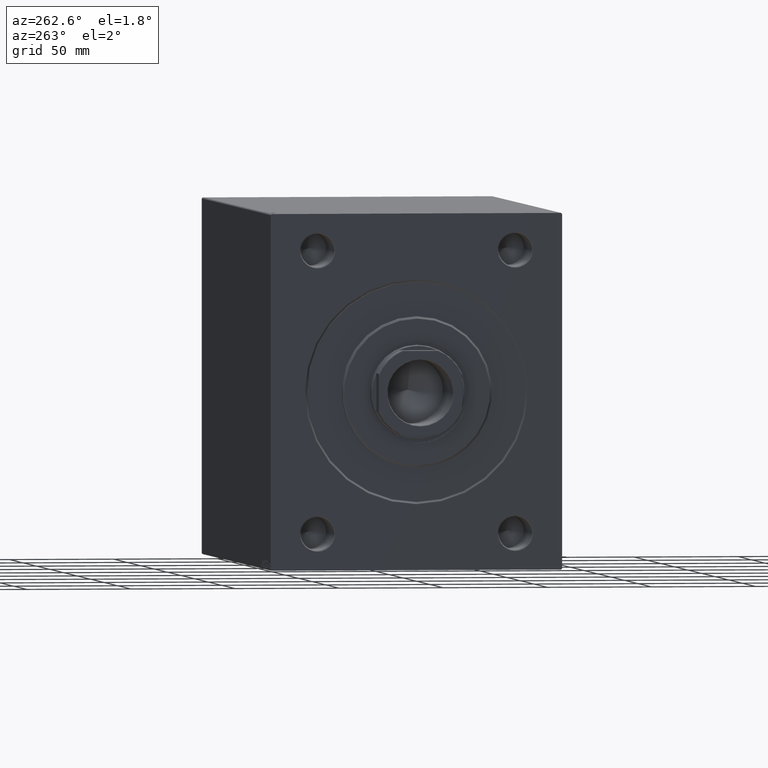
[diagram: clean part render]
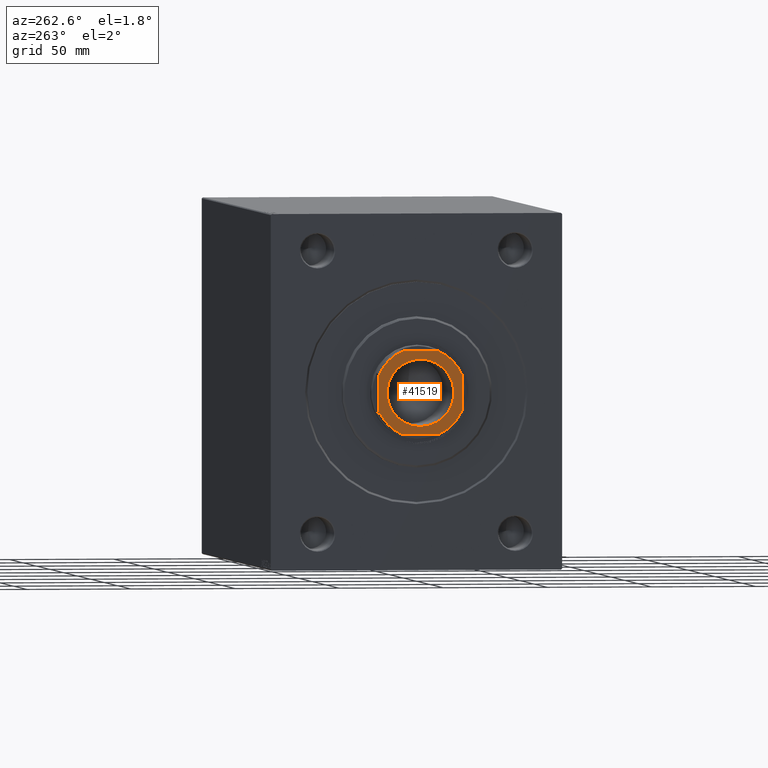
[diagram: same view with one face highlighted and labeled with its STEP entity id]
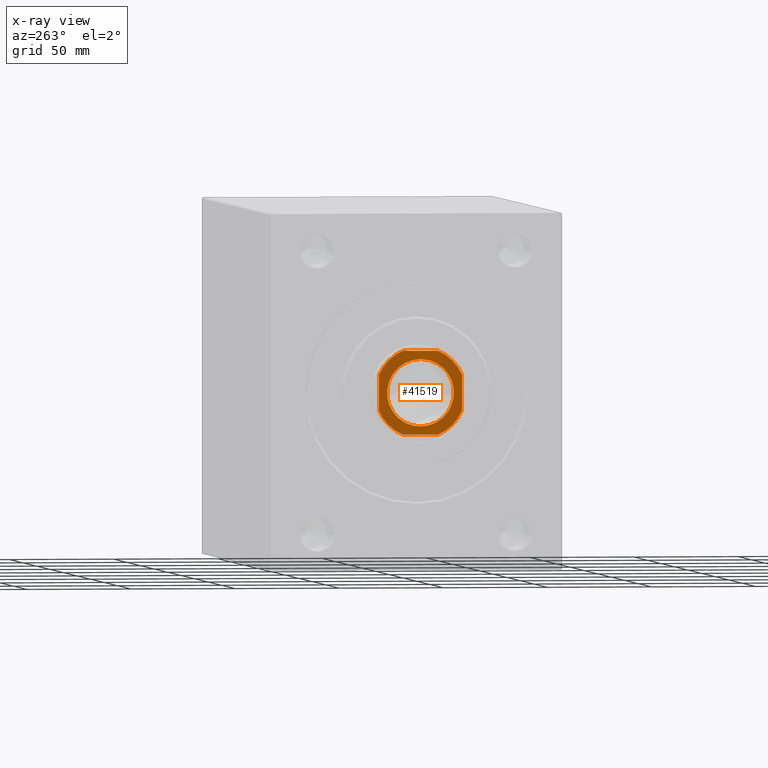
[diagram: x-ray of the same camera — body ghosted, the highlighted face saturated]
A machine part, auxiliary view. The second image highlights one B-rep face of the part: STEP entity #41519.
The next image is the same camera in x-ray: the body ghosted, the highlighted face saturated — about 0% of this face is hidden behind the body in this view.
In plain terms, the highlighted planar face has unit normal (-1, 0, 0).
Its self-contained STEP definition (entity closure, byte-faithful):
#274 = EDGE_CURVE ( 'NONE', #1446, #30157, #19291, .T. ) ;
#293 = VECTOR ( 'NONE', #2611, 1000.000000000000000 ) ;
#951 = EDGE_CURVE ( 'NONE', #9966, #1446, #38605, .T. ) ;
#1048 = CARTESIAN_POINT ( 'NONE',  ( -20.00000000000000355, 8.419619943916682558, 244.0000000000000284 ) ) ;
#1446 = VERTEX_POINT ( 'NONE', #25354 ) ;
#1831 = VERTEX_POINT ( 'NONE', #8669 ) ;
#2450 = CARTESIAN_POINT ( 'NONE',  ( -20.00000000000000000, -8.419619943916694993, 244.0000000000000284 ) ) ;
#2611 = DIRECTION ( 'NONE',  ( -1.000000000000000000, -8.673617379884035472E-17, -0.000000000000000000 ) ) ;
#3323 = ORIENTED_EDGE ( 'NONE', *, *, #12639, .T. ) ;
#3882 = AXIS2_PLACEMENT_3D ( 'NONE', #26722, #13098, #6636 ) ;
#4058 = DIRECTION ( 'NONE',  ( -0.000000000000000000, 0.000000000000000000, 1.000000000000000000 ) ) ;
#4680 = VERTEX_POINT ( 'NONE', #17643 ) ;
#5156 = AXIS2_PLACEMENT_3D ( 'NONE', #12153, #42330, #26225 ) ;
#5265 = DIRECTION ( 'NONE',  ( -2.602085213965210149E-16, 1.000000000000000000, -0.000000000000000000 ) ) ;
#5422 = DIRECTION ( 'NONE',  ( -0.000000000000000000, 0.000000000000000000, 1.000000000000000000 ) ) ;
#5804 = LINE ( 'NONE', #18949, #35227 ) ;
#6249 = ORIENTED_EDGE ( 'NONE', *, *, #20738, .T. ) ;
#6636 = DIRECTION ( 'NONE',  ( 1.000000000000000000, 0.000000000000000000, 0.000000000000000000 ) ) ;
#7481 = DIRECTION ( 'NONE',  ( 0.000000000000000000, -0.000000000000000000, -1.000000000000000000 ) ) ;
#8669 = CARTESIAN_POINT ( 'NONE',  ( -16.05000000000003624, 1.965558112631506149E-15, 244.0000000000000284 ) ) ;
#9259 = EDGE_CURVE ( 'NONE', #42444, #20440, #5804, .T. ) ;
#9966 = VERTEX_POINT ( 'NONE', #20794 ) ;
#10035 = VECTOR ( 'NONE', #5265, 1000.000000000000000 ) ;
#12153 = CARTESIAN_POINT ( 'NONE',  ( 0.000000000000000000, 0.000000000000000000, 244.0000000000000284 ) ) ;
#12480 = CIRCLE ( 'NONE', #28159, 21.69999999999999574 ) ;
#12621 = EDGE_CURVE ( 'NONE', #16894, #4680, #33217, .T. ) ;
#12639 = EDGE_CURVE ( 'NONE', #30157, #16894, #41659, .T. ) ;
#12905 = FACE_OUTER_BOUND ( 'NONE', #27267, .T. ) ;
#13098 = DIRECTION ( 'NONE',  ( -0.000000000000000000, 0.000000000000000000, 1.000000000000000000 ) ) ;
#14305 = DIRECTION ( 'NONE',  ( 1.000000000000000000, 0.000000000000000000, 0.000000000000000000 ) ) ;
#14363 = EDGE_CURVE ( 'NONE', #20440, #25550, #12480, .T. ) ;
#15009 = CARTESIAN_POINT ( 'NONE',  ( -19.99999999999999645, -20.00000000000001066, 244.0000000000000284 ) ) ;
#15472 = CARTESIAN_POINT ( 'NONE',  ( 8.419619943916625715, 19.99999999999999289, 244.0000000000000284 ) ) ;
#16894 = VERTEX_POINT ( 'NONE', #15472 ) ;
#17134 = EDGE_LOOP ( 'NONE', ( #28161, #26335 ) ) ;
#17440 = ORIENTED_EDGE ( 'NONE', *, *, #9259, .T. ) ;
#17643 = CARTESIAN_POINT ( 'NONE',  ( -8.419619943916716309, 19.99999999999999289, 244.0000000000000284 ) ) ;
#17972 = AXIS2_PLACEMENT_3D ( 'NONE', #42714, #5422, #25501 ) ;
#18669 = CIRCLE ( 'NONE', #17972, 21.69999999999999574 ) ;
#18949 = CARTESIAN_POINT ( 'NONE',  ( -20.00000000000000711, 19.99999999999998934, 244.0000000000000284 ) ) ;
#19074 = CARTESIAN_POINT ( 'NONE',  ( 19.99999999999999289, 19.99999999999999289, 244.0000000000000284 ) ) ;
#19291 = LINE ( 'NONE', #19074, #10035 ) ;
#20021 = FACE_BOUND ( 'NONE', #17134, .T. ) ;
#20440 = VERTEX_POINT ( 'NONE', #2450 ) ;
#20726 = AXIS2_PLACEMENT_3D ( 'NONE', #38826, #23691, #20773 ) ;
#20738 = EDGE_CURVE ( 'NONE', #25550, #9966, #35351, .T. ) ;
#20773 = DIRECTION ( 'NONE',  ( 1.000000000000000000, 0.000000000000000000, 0.000000000000000000 ) ) ;
#20794 = CARTESIAN_POINT ( 'NONE',  ( 8.419619943916575977, -20.00000000000001066, 244.0000000000000284 ) ) ;
#22952 = CARTESIAN_POINT ( 'NONE',  ( 16.05000000000003624, 0.000000000000000000, 244.0000000000000284 ) ) ;
#22959 = CIRCLE ( 'NONE', #5156, 16.05000000000003624 ) ;
#23414 = ORIENTED_EDGE ( 'NONE', *, *, #274, .T. ) ;
#23691 = DIRECTION ( 'NONE',  ( -0.000000000000000000, 0.000000000000000000, 1.000000000000000000 ) ) ;
#23833 = CARTESIAN_POINT ( 'NONE',  ( 0.000000000000000000, 0.000000000000000000, 244.0000000000000284 ) ) ;
#24432 = CARTESIAN_POINT ( 'NONE',  ( 0.000000000000000000, 0.000000000000000000, 244.0000000000000284 ) ) ;
#24775 = CARTESIAN_POINT ( 'NONE',  ( -8.419619943916673677, -20.00000000000001066, 244.0000000000000284 ) ) ;
#25354 = CARTESIAN_POINT ( 'NONE',  ( 20.00000000000000000, -8.419619943916611504, 244.0000000000000284 ) ) ;
#25360 = CARTESIAN_POINT ( 'NONE',  ( 19.99999999999999289, 8.419619943916616833, 244.0000000000000284 ) ) ;
#25386 = VECTOR ( 'NONE', #32224, 1000.000000000000000 ) ;
#25501 = DIRECTION ( 'NONE',  ( 1.000000000000000000, 0.000000000000000000, 0.000000000000000000 ) ) ;
#25550 = VERTEX_POINT ( 'NONE', #24775 ) ;
#26225 = DIRECTION ( 'NONE',  ( 1.000000000000000000, 0.000000000000000000, 0.000000000000000000 ) ) ;
#26335 = ORIENTED_EDGE ( 'NONE', *, *, #43836, .T. ) ;
#26437 = ORIENTED_EDGE ( 'NONE', *, *, #12621, .T. ) ;
#26722 = CARTESIAN_POINT ( 'NONE',  ( 0.000000000000000000, 0.000000000000000000, 244.0000000000000284 ) ) ;
#26965 = EDGE_CURVE ( 'NONE', #36967, #1831, #29076, .T. ) ;
#27267 = EDGE_LOOP ( 'NONE', ( #23414, #3323, #26437, #42113, #17440, #34691, #6249, #31548 ) ) ;
#27712 = CARTESIAN_POINT ( 'NONE',  ( 0.000000000000000000, 0.000000000000000000, 244.0000000000000284 ) ) ;
#28159 = AXIS2_PLACEMENT_3D ( 'NONE', #27712, #4058, #14305 ) ;
#28161 = ORIENTED_EDGE ( 'NONE', *, *, #26965, .T. ) ;
#29076 = CIRCLE ( 'NONE', #37638, 16.05000000000003624 ) ;
#30157 = VERTEX_POINT ( 'NONE', #25360 ) ;
#30331 = DIRECTION ( 'NONE',  ( 1.000000000000000000, 0.000000000000000000, 0.000000000000000000 ) ) ;
#31548 = ORIENTED_EDGE ( 'NONE', *, *, #951, .T. ) ;
#31573 = AXIS2_PLACEMENT_3D ( 'NONE', #23833, #33678, #30331 ) ;
#32224 = DIRECTION ( 'NONE',  ( 1.000000000000000000, 0.000000000000000000, 0.000000000000000000 ) ) ;
#33217 = LINE ( 'NONE', #36577, #293 ) ;
#33263 = DIRECTION ( 'NONE',  ( 2.602085213965210642E-16, -1.000000000000000000, 0.000000000000000000 ) ) ;
#33678 = DIRECTION ( 'NONE',  ( -0.000000000000000000, 0.000000000000000000, 1.000000000000000000 ) ) ;
#34691 = ORIENTED_EDGE ( 'NONE', *, *, #14363, .T. ) ;
#35227 = VECTOR ( 'NONE', #33263, 1000.000000000000000 ) ;
#35351 = LINE ( 'NONE', #15009, #25386 ) ;
#36577 = CARTESIAN_POINT ( 'NONE',  ( -20.00000000000000711, 19.99999999999998934, 244.0000000000000284 ) ) ;
#36827 = PLANE ( 'NONE',  #31573 ) ;
#36967 = VERTEX_POINT ( 'NONE', #22952 ) ;
#37638 = AXIS2_PLACEMENT_3D ( 'NONE', #24432, #7481, #40993 ) ;
#38605 = CIRCLE ( 'NONE', #20726, 21.69999999999996021 ) ;
#38826 = CARTESIAN_POINT ( 'NONE',  ( 0.000000000000000000, 0.000000000000000000, 244.0000000000000284 ) ) ;
#40993 = DIRECTION ( 'NONE',  ( 1.000000000000000000, 0.000000000000000000, 0.000000000000000000 ) ) ;
#41519 = ADVANCED_FACE ( 'NONE', ( #20021, #12905 ), #36827, .T. ) ;
#41659 = CIRCLE ( 'NONE', #3882, 21.69999999999996021 ) ;
#42113 = ORIENTED_EDGE ( 'NONE', *, *, #44198, .T. ) ;
#42330 = DIRECTION ( 'NONE',  ( 0.000000000000000000, -0.000000000000000000, -1.000000000000000000 ) ) ;
#42444 = VERTEX_POINT ( 'NONE', #1048 ) ;
#42714 = CARTESIAN_POINT ( 'NONE',  ( 0.000000000000000000, 0.000000000000000000, 244.0000000000000284 ) ) ;
#43836 = EDGE_CURVE ( 'NONE', #1831, #36967, #22959, .T. ) ;
#44198 = EDGE_CURVE ( 'NONE', #4680, #42444, #18669, .T. ) ;